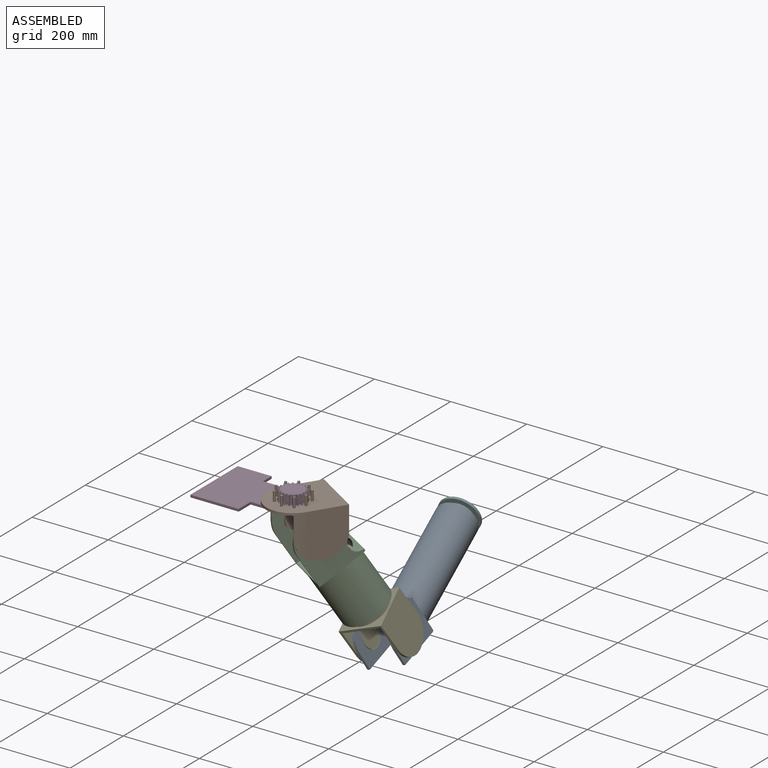
[diagram: assembled view]
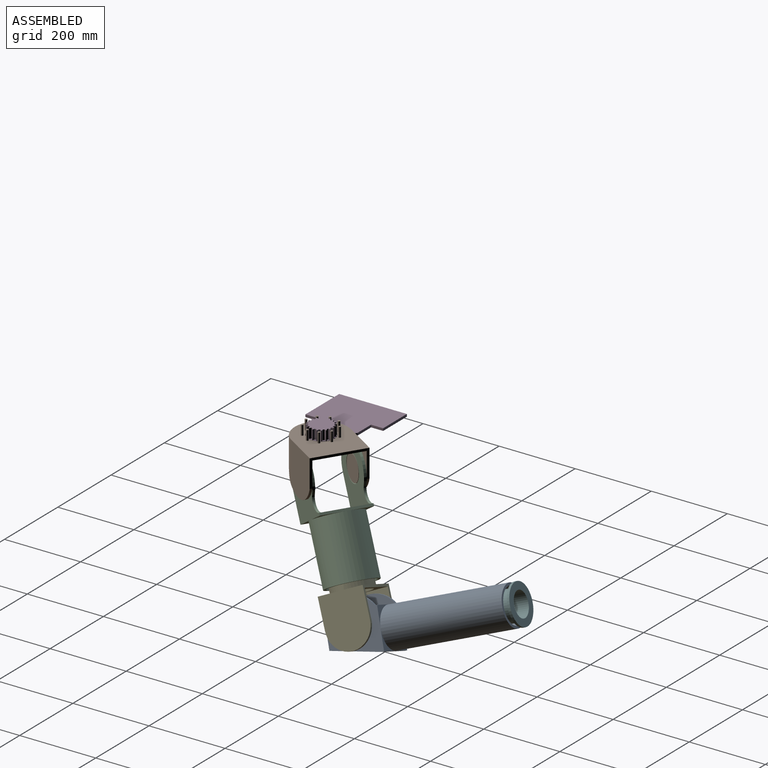
[diagram: assembled view, second angle]
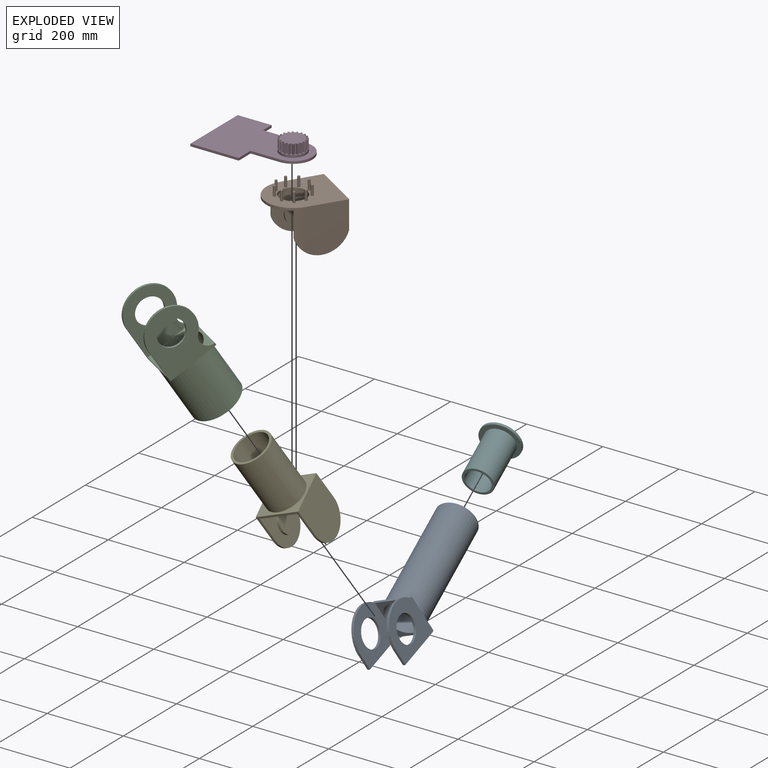
[diagram: exploded view]
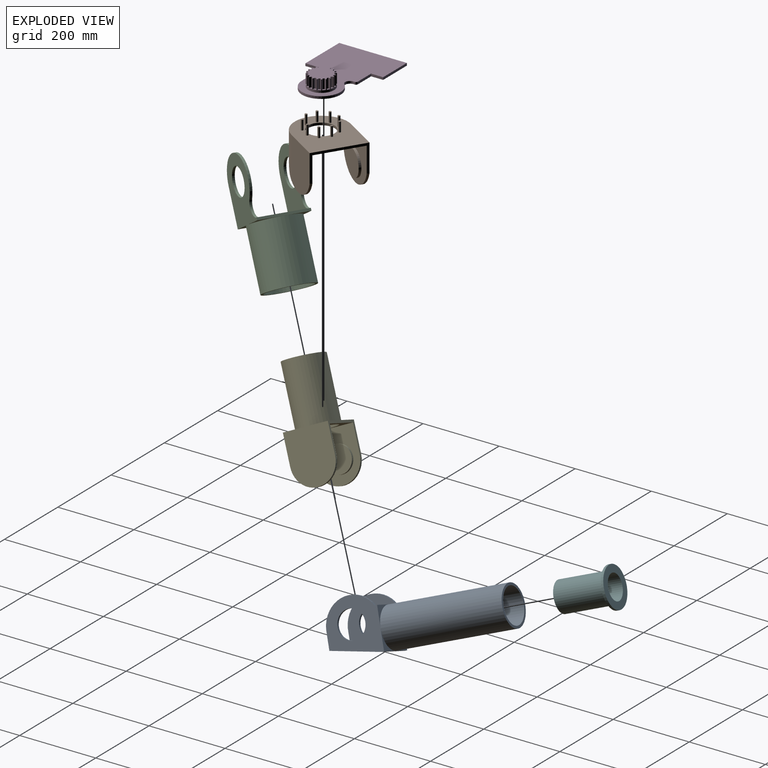
[diagram: exploded view, second angle]
ASSEMBLY  parts=6 mates=5
PART A: 23 faces, bbox 101.6x438.2x133.4 mm
  f0: plane 47.46x6.35mm, normal (0,-1,0), area 301.3mm2, adj f3,f15,f20,f22
  f1: plane 47.46x6.35mm, normal (0,-1,0), area 301.3mm2, adj f2,f4,f17,f19
  f2: plane 133.35x133.35mm, normal (1,0,0), area 10772.3mm2, adj f1,f10,f11,f14,f16,f17,f18,f19
  f3: plane 133.35x127mm, normal (1,0,0), area 10127.1mm2, adj f0,f5,f6,f20,f21,f22
  f4: plane 133.35x127mm, normal (-1,0,0), area 10127.1mm2, adj f1,f5,f6,f17,f18,f19
  f5: plane 88.9x50.8mm, normal (0,-1,0), area 1412.5mm2, adj f3,f4,f7,f16
  f6: plane 88.9x50.8mm, normal (0,-1,0), area 1412.5mm2, adj f3,f4,f7,f14
  f7: cylinder r=44.45mm len=311.15mm, axis (0,1,0), area 86900.3mm2, adj f5,f6,f9
  f8: cylinder r=50.8mm len=304.8mm, axis (0,1,0), area 97287.8mm2, adj f9,f10,f11,f12,f13
  f9: plane 101.6x101.6mm, normal (0,1,0), area 1900.2mm2, adj f7,f8
  f10: plane 50.8x50.8mm, normal (0,1,0), area 553.8mm2, adj f2,f8,f16
  f11: plane 50.8x50.8mm, normal (0,1,0), area 553.8mm2, adj f2,f8,f14
  f12: plane 50.8x50.8mm, normal (0,1,0), area 553.8mm2, adj f8,f14,f15
  f13: plane 50.8x50.8mm, normal (0,1,0), area 553.8mm2, adj f8,f15,f16
  f14: plane 101.6x6.35mm, normal (0,0,1), area 645.2mm2, adj f2,f6,f11,f12,f15,f17,f20
  f15: plane 133.35x133.35mm, normal (-1,0,0), area 10772.3mm2, adj f0,f12,f13,f14,f16,f20,f21,f22
  f16: plane 101.6x6.35mm, normal (0,0,-1), area 645.2mm2, adj f2,f5,f10,f13,f15,f19,f22
  f17: cylinder r=69.09mm len=127mm, axis (-1,0,0), area 1092.3mm2, adj f1,f2,f4,f14
  f18: cylinder r=34.92mm len=69.85mm, axis (-1,0,0), area 1393.4mm2, adj f2,f4
  f19: plane 127x22.39mm, normal (0,-0.17,-0.98), area 818.9mm2, adj f1,f2,f4,f16
  f20: cylinder r=69.09mm len=127mm, axis (-1,0,0), area 1092.3mm2, adj f0,f3,f14,f15
  f21: cylinder r=34.92mm len=69.85mm, axis (-1,0,0), area 1393.4mm2, adj f3,f15
  f22: plane 127x22.39mm, normal (0,-0.17,-0.98), area 818.9mm2, adj f0,f3,f15,f16
PART B: 35 faces, bbox 171.5x139.7x146.1 mm
  f0: plane 66.68x1.57mm, normal (-1,0,0), area 104.6mm2, adj f3,f5,f7,f12
  f1: plane 66.68x1.57mm, normal (-1,0,0), area 104.6mm2, adj f4,f5,f7,f11
  f2: plane 120.65x101.6mm, normal (0,1,0), area 11314mm2, adj f5,f6,f10,f12
  f3: plane 127x114.3mm, normal (0,-1,0), area 9364.3mm2, adj f0,f6,f7,f12,f15
  f4: plane 127x114.3mm, normal (0,1,0), area 9364.3mm2, adj f1,f6,f7,f11,f13
  f5: cylinder r=69.85mm len=139.7mm, axis (0,0,-1), area 5996.2mm2, adj f0,f1,f2,f7,f8,f10,f11,f12
  f6: plane 139.7x73.03mm, normal (1,0,0), area 1733.9mm2, adj f2,f3,f4,f7,f8,f10,f11,f12
  f7: plane 171.45x130.14mm, normal (0,0,-1), area 16492.4mm2, adj f0,f1,f3,f4,f5,f6,f9
  f8: plane 120.65x101.6mm, normal (0,-1,0), area 11314mm2, adj f5,f6,f10,f11
  f9: cylinder r=34.92mm len=69.85mm, axis (0,0,-1), area 1393.4mm2, adj f7,f10
  f10: plane 171.45x139.7mm, normal (0,0,1), area 17740.5mm2, adj f2,f5,f6,f8,f9,f17,f19,f21
  f11: cylinder r=66.15mm len=127mm, axis (0,-1,0), area 992.5mm2, adj f1,f4,f5,f6,f8
  f12: cylinder r=66.15mm len=127mm, axis (0,-1,0), area 992.5mm2, adj f0,f2,f3,f5,f6
  f13: cylinder r=33.65mm len=67.31mm, axis (0,-1,0), area 1342.8mm2, adj f4,f14
  f14: plane 67.31x67.31mm, normal (0,1,0), area 3558.4mm2, adj f13
  f15: cylinder r=33.65mm len=67.31mm, axis (0,1,0), area 1342.8mm2, adj f3,f16
  f16: plane 67.31x67.31mm, normal (0,-1,0), area 3558.4mm2, adj f15
  f17: cylinder r=3.17mm len=25.4mm, axis (0,0,-1), area 506.7mm2, adj f10,f18
  f18: plane 6.35x6.35mm, normal (0,0,1), area 31.7mm2, adj f17
  f19: cylinder r=3.17mm len=25.4mm, axis (0,0,-1), area 506.7mm2, adj f10,f20
  f20: plane 6.35x6.35mm, normal (0,0,1), area 31.7mm2, adj f19
  f21: cylinder r=3.17mm len=25.4mm, axis (0,0,-1), area 506.7mm2, adj f10,f22
  f22: plane 6.35x6.35mm, normal (0,0,1), area 31.7mm2, adj f21
  f23: cylinder r=3.17mm len=25.4mm, axis (0,0,-1), area 506.7mm2, adj f10,f24
  f24: plane 6.35x6.35mm, normal (0,0,1), area 31.7mm2, adj f23
  f25: cylinder r=3.17mm len=25.4mm, axis (0,0,-1), area 506.7mm2, adj f10,f26
  f26: plane 6.35x6.35mm, normal (0,0,1), area 31.7mm2, adj f25
  f27: cylinder r=3.17mm len=25.4mm, axis (0,0,-1), area 506.7mm2, adj f10,f28
  f28: plane 6.35x6.35mm, normal (0,0,1), area 31.7mm2, adj f27
  f29: cylinder r=3.17mm len=25.4mm, axis (0,0,-1), area 506.7mm2, adj f10,f30
  f30: plane 6.35x6.35mm, normal (0,0,1), area 31.7mm2, adj f29
  f31: cylinder r=3.17mm len=25.4mm, axis (0,0,-1), area 506.7mm2, adj f10,f32
  f32: plane 6.35x6.35mm, normal (0,0,1), area 31.7mm2, adj f31
  f33: cylinder r=3.17mm len=25.4mm, axis (0,0,-1), area 506.7mm2, adj f10,f34
  f34: plane 6.35x6.35mm, normal (0,0,1), area 31.7mm2, adj f33
PART C: 21 faces, bbox 127x127x311.2 mm
  f0: plane 158.75x127mm, normal (0,-1,0), area 13383.7mm2, adj f11,f12,f13,f14,f18,f19,f20
  f1: plane 152.4x127mm, normal (0,1,0), area 12577.2mm2, adj f4,f5,f14,f18,f19,f20
  f2: plane 152.4x127mm, normal (0,-1,0), area 12577.2mm2, adj f4,f5,f14,f15,f16,f17
  f3: plane 158.75x127mm, normal (0,1,0), area 13383.7mm2, adj f9,f10,f13,f14,f15,f16,f17
  f4: plane 114.3x63.5mm, normal (0,0,1), area 2127.6mm2, adj f1,f2,f6,f13
  f5: plane 114.3x63.5mm, normal (0,0,1), area 2127.6mm2, adj f1,f2,f6,f14
  f6: cylinder r=57.15mm len=158.75mm, axis (0,0,-1), area 57004.6mm2, adj f4,f5,f8
  f7: cylinder r=63.5mm len=152.4mm, axis (0,0,-1), area 60804.9mm2, adj f8,f9,f10,f11,f12
  f8: plane 127x127mm, normal (0,0,-1), area 2406.9mm2, adj f6,f7
  f9: plane 63.5x63.5mm, normal (0,0,-1), area 865.3mm2, adj f3,f7,f13
  f10: plane 63.5x63.5mm, normal (0,0,-1), area 865.3mm2, adj f3,f7,f14
  f11: plane 63.5x63.5mm, normal (0,0,-1), area 865.3mm2, adj f0,f7,f14
  f12: plane 63.5x63.5mm, normal (0,0,-1), area 865.3mm2, adj f0,f7,f13
  f13: plane 127x6.35mm, normal (1,0,0), area 806.4mm2, adj f0,f3,f4,f9,f12,f15,f18
  f14: plane 127x95.25mm, normal (-1,0,0), area 1935.5mm2, adj f0,f1,f2,f3,f5,f10,f11,f16
  f15: cylinder r=25.93mm len=44.19mm, axis (0,1,0), area 387.3mm2, adj f2,f3,f13,f16
  f16: cylinder r=63.5mm len=127mm, axis (0,1,0), area 1581.8mm2, adj f2,f3,f14,f15
  f17: cylinder r=34.92mm len=69.85mm, axis (0,1,0), area 1393.4mm2, adj f2,f3
  f18: cylinder r=25.93mm len=44.19mm, axis (0,1,0), area 387.3mm2, adj f0,f1,f13,f19
  f19: cylinder r=63.5mm len=127mm, axis (0,1,0), area 1581.8mm2, adj f0,f1,f14,f18
  f20: cylinder r=34.92mm len=69.85mm, axis (0,1,0), area 1393.4mm2, adj f0,f1
PART D: 154 faces, bbox 254x177.8x38.1 mm
  f0: plane 7.97x7.97mm, normal (0,0,1), area 30.9mm2, adj f19,f147,f148,f149
  f1: plane 7.97x7.23mm, normal (0,0,1), area 30.9mm2, adj f19,f143,f144,f145
  f2: plane 8.84x5.79mm, normal (0,0,1), area 30.9mm2, adj f19,f139,f140,f141
  f3: plane 8.84x5.79mm, normal (0,0,1), area 30.9mm2, adj f19,f135,f136,f137
  f4: plane 7.97x7.23mm, normal (0,0,1), area 30.9mm2, adj f19,f131,f132,f133
  f5: plane 7.97x7.97mm, normal (0,0,1), area 30.9mm2, adj f19,f127,f128,f129
  f6: plane 7.97x7.23mm, normal (0,0,1), area 30.9mm2, adj f19,f123,f124,f125
  f7: plane 8.84x5.79mm, normal (0,0,1), area 30.9mm2, adj f19,f119,f120,f121
  f8: plane 8.84x5.79mm, normal (0,0,1), area 30.9mm2, adj f19,f115,f116,f117
  f9: plane 7.97x7.23mm, normal (0,0,1), area 30.9mm2, adj f19,f111,f112,f113
  f10: plane 7.97x7.97mm, normal (0,0,1), area 30.9mm2, adj f19,f107,f108,f109
  f11: plane 7.97x7.23mm, normal (0,0,1), area 30.9mm2, adj f19,f103,f104,f105
  f12: plane 8.84x5.79mm, normal (0,0,1), area 30.9mm2, adj f19,f99,f100,f101
  f13: plane 8.84x5.79mm, normal (0,0,1), area 30.9mm2, adj f19,f95,f96,f97
  f14: plane 7.97x7.23mm, normal (0,0,1), area 30.9mm2, adj f19,f91,f92,f93
  f15: plane 7.97x7.97mm, normal (0,0,1), area 30.9mm2, adj f19,f87,f88,f89
  f16: plane 7.97x7.23mm, normal (0,0,1), area 30.9mm2, adj f19,f83,f84,f85
  f17: plane 8.84x5.79mm, normal (0,0,1), area 30.9mm2, adj f19,f79,f80,f81
  f18: plane 8.84x5.79mm, normal (0,0,1), area 30.9mm2, adj f19,f75,f76,f77
  f19: cylinder r=33.65mm len=67.31mm, axis (0,0,-1), area 1342.8mm2, adj f0,f1,f2,f3,f4,f5,f6,f7
  f20: plane 7.97x7.23mm, normal (0,0,1), area 30.9mm2, adj f19,f72,f73,f151
  f21: cylinder r=50.8mm len=101.6mm, axis (0,0,1), area 1284.7mm2, adj f22,f30,f31,f32
  f22: plane 76.2x6.35mm, normal (0,-1,0), area 483.9mm2, adj f21,f23,f31,f32
  f23: plane 44.45x6.35mm, normal (1,0,0), area 282.3mm2, adj f22,f24,f31,f32
  f24: plane 127x6.35mm, normal (0,-1,0), area 806.5mm2, adj f23,f25,f31,f32
  f25: plane 177.8x6.35mm, normal (-1,0,0), area 1129mm2, adj f24,f26,f31,f32
  f26: plane 88.9x6.35mm, normal (0,1,0), area 564.5mm2, adj f25,f27,f31,f32
  f27: plane 31.75x6.35mm, normal (1,0,0), area 201.6mm2, adj f26,f28,f31,f32
  f28: plane 49.52x6.35mm, normal (0,1,0), area 314.4mm2, adj f27,f29,f31,f32
  f29: cylinder r=5.08mm len=6.35mm, axis (0,0,1), area 56.9mm2, adj f28,f30,f31,f32
  f30: cylinder r=12.7mm len=22.17mm, axis (0,0,1), area 210mm2, adj f21,f29,f31,f32
  f31: plane 254x177.8mm, normal (0,0,-1), area 32543.8mm2, adj f21,f22,f23,f24,f25,f26,f27,f28
  f32: plane 254x177.8mm, normal (0,0,1), area 28985.4mm2, adj f19,f21,f22,f23,f24,f25,f26,f27
  f33: plane 0.76x0.25mm, normal (0,0,-1), area 0mm2, adj f19,f114,f115
  f34: plane 0.76x0.26mm, normal (0,0,-1), area 0mm2, adj f19,f113,f114
  f35: plane 0.65x0.47mm, normal (0,0,-1), area 0mm2, adj f19,f110,f111
  f36: plane 0.64x0.48mm, normal (0,0,-1), area 0mm2, adj f19,f109,f110
  f37: plane 0.64x0.48mm, normal (0,0,-1), area 0mm2, adj f19,f106,f107
  f38: plane 0.65x0.47mm, normal (0,0,-1), area 0mm2, adj f19,f105,f106
  f39: plane 0.76x0.26mm, normal (0,0,-1), area 0mm2, adj f19,f102,f103
  f40: plane 0.76x0.25mm, normal (0,0,-1), area 0mm2, adj f19,f101,f102
  f41: plane 0.8x0.01mm, normal (0,0,-1), area 0mm2, adj f19,f98,f99
  f42: plane 0.8x0.01mm, normal (0,0,-1), area 0mm2, adj f19,f97,f98
  f43: plane 0.76x0.25mm, normal (0,0,-1), area 0mm2, adj f19,f94,f95
  f44: plane 0.76x0.26mm, normal (0,0,-1), area 0mm2, adj f19,f93,f94
  f45: plane 0.65x0.47mm, normal (0,0,-1), area 0mm2, adj f19,f90,f91
  f46: plane 0.64x0.48mm, normal (0,0,-1), area 0mm2, adj f19,f89,f90
  f47: plane 0.64x0.48mm, normal (0,0,-1), area 0mm2, adj f19,f86,f87
  f48: plane 0.65x0.47mm, normal (0,0,-1), area 0mm2, adj f19,f85,f86
  f49: plane 0.76x0.26mm, normal (0,0,-1), area 0mm2, adj f19,f82,f83
  f50: plane 0.76x0.25mm, normal (0,0,-1), area 0mm2, adj f19,f81,f82
  f51: plane 0.8x0.01mm, normal (0,0,-1), area 0mm2, adj f19,f78,f79
  f52: plane 0.8x0.01mm, normal (0,0,-1), area 0mm2, adj f19,f77,f78
  f53: plane 0.76x0.25mm, normal (0,0,-1), area 0mm2, adj f19,f74,f75
  f54: plane 0.76x0.26mm, normal (0,0,-1), area 0mm2, adj f19,f73,f74
  f55: plane 0.65x0.47mm, normal (0,0,-1), area 0mm2, adj f19,f150,f151
  f56: plane 0.64x0.48mm, normal (0,0,-1), area 0mm2, adj f19,f149,f150
  f57: plane 0.64x0.48mm, normal (0,0,-1), area 0mm2, adj f19,f146,f147
  f58: plane 0.65x0.47mm, normal (0,0,-1), area 0mm2, adj f19,f145,f146
  f59: plane 0.76x0.26mm, normal (0,0,-1), area 0mm2, adj f19,f142,f143
  f60: plane 0.76x0.25mm, normal (0,0,-1), area 0mm2, adj f19,f141,f142
  f61: plane 0.8x0.01mm, normal (0,0,-1), area 0mm2, adj f19,f138,f139
  f62: plane 0.8x0.01mm, normal (0,0,-1), area 0mm2, adj f19,f137,f138
  f63: plane 0.76x0.25mm, normal (0,0,-1), area 0mm2, adj f19,f134,f135
  f64: plane 0.76x0.26mm, normal (0,0,-1), area 0mm2, adj f19,f133,f134
  f65: plane 0.65x0.47mm, normal (0,0,-1), area 0mm2, adj f19,f130,f131
  f66: plane 0.64x0.48mm, normal (0,0,-1), area 0mm2, adj f19,f129,f130
  f67: plane 0.64x0.48mm, normal (0,0,-1), area 0mm2, adj f19,f126,f127
  f68: plane 0.65x0.47mm, normal (0,0,-1), area 0mm2, adj f19,f125,f126
  f69: plane 0.76x0.26mm, normal (0,0,-1), area 0mm2, adj f19,f122,f123
  f70: plane 0.76x0.25mm, normal (0,0,-1), area 0mm2, adj f19,f121,f122
  f71: plane 0.8x0.01mm, normal (0,0,-1), area 0mm2, adj f19,f117,f118
  f72: cylinder r=28.57mm len=25.4mm, axis (0,0,-1), area 98.8mm2, adj f20,f73,f151,f152
  f73: cylinder r=15.24mm len=25.4mm, axis (0,0,-1), area 139.9mm2, adj f20,f54,f72,f74,f152
  f74: plane 25.4x1.51mm, normal (0.95,-0.31,0), area 40.3mm2, adj f53,f54,f73,f75,f152
  f75: cylinder r=15.24mm len=25.4mm, axis (0,0,-1), area 139.9mm2, adj f18,f53,f74,f76,f152
  f76: cylinder r=28.57mm len=25.4mm, axis (0,0,-1), area 98.8mm2, adj f18,f75,f77,f152
  f77: cylinder r=15.24mm len=25.4mm, axis (0,0,-1), area 139.9mm2, adj f18,f52,f76,f78,f152
  f78: plane 25.4x1.59mm, normal (1,0,0), area 40.3mm2, adj f51,f52,f77,f79,f152
  f79: cylinder r=15.24mm len=25.4mm, axis (0,0,-1), area 139.9mm2, adj f17,f51,f78,f80,f152
  f80: cylinder r=28.57mm len=25.4mm, axis (0,0,-1), area 98.8mm2, adj f17,f79,f81,f152
  f81: cylinder r=15.24mm len=25.4mm, axis (0,0,-1), area 139.9mm2, adj f17,f50,f80,f82,f152
  f82: plane 25.4x1.51mm, normal (0.95,0.31,0), area 40.3mm2, adj f49,f50,f81,f83,f152
  f83: cylinder r=15.24mm len=25.4mm, axis (0,0,-1), area 139.9mm2, adj f16,f49,f82,f84,f152
  f84: cylinder r=28.57mm len=25.4mm, axis (0,0,-1), area 98.8mm2, adj f16,f83,f85,f152
  f85: cylinder r=15.24mm len=25.4mm, axis (0,0,-1), area 139.9mm2, adj f16,f48,f84,f86,f152
  f86: plane 25.4x1.28mm, normal (0.81,0.59,0), area 40.3mm2, adj f47,f48,f85,f87,f152
  f87: cylinder r=15.24mm len=25.4mm, axis (0,0,-1), area 139.9mm2, adj f15,f47,f86,f88,f152
  f88: cylinder r=28.57mm len=25.4mm, axis (0,0,-1), area 98.8mm2, adj f15,f87,f89,f152
  f89: cylinder r=15.24mm len=25.4mm, axis (0,0,-1), area 139.9mm2, adj f15,f46,f88,f90,f152
  f90: plane 25.4x1.28mm, normal (0.59,0.81,0), area 40.3mm2, adj f45,f46,f89,f91,f152
  f91: cylinder r=15.24mm len=25.4mm, axis (0,0,-1), area 139.9mm2, adj f14,f45,f90,f92,f152
  f92: cylinder r=28.57mm len=25.4mm, axis (0,0,-1), area 98.8mm2, adj f14,f91,f93,f152
  f93: cylinder r=15.24mm len=25.4mm, axis (0,0,-1), area 139.9mm2, adj f14,f44,f92,f94,f152
  f94: plane 25.4x1.51mm, normal (0.31,0.95,0), area 40.3mm2, adj f43,f44,f93,f95,f152
  f95: cylinder r=15.24mm len=25.4mm, axis (0,0,-1), area 139.9mm2, adj f13,f43,f94,f96,f152
  f96: cylinder r=28.57mm len=25.4mm, axis (0,0,-1), area 98.8mm2, adj f13,f95,f97,f152
  f97: cylinder r=15.24mm len=25.4mm, axis (0,0,-1), area 139.9mm2, adj f13,f42,f96,f98,f152
  f98: plane 25.4x1.59mm, normal (0,1,0), area 40.3mm2, adj f41,f42,f97,f99,f152
  f99: cylinder r=15.24mm len=25.4mm, axis (0,0,-1), area 139.9mm2, adj f12,f41,f98,f100,f152
  f100: cylinder r=28.57mm len=25.4mm, axis (0,0,-1), area 98.8mm2, adj f12,f99,f101,f152
  f101: cylinder r=15.24mm len=25.4mm, axis (0,0,-1), area 139.9mm2, adj f12,f40,f100,f102,f152
  f102: plane 25.4x1.51mm, normal (-0.31,0.95,0), area 40.3mm2, adj f39,f40,f101,f103,f152
  f103: cylinder r=15.24mm len=25.4mm, axis (0,0,-1), area 139.9mm2, adj f11,f39,f102,f104,f152
  f104: cylinder r=28.57mm len=25.4mm, axis (0,0,-1), area 98.8mm2, adj f11,f103,f105,f152
  f105: cylinder r=15.24mm len=25.4mm, axis (0,0,-1), area 139.9mm2, adj f11,f38,f104,f106,f152
  f106: plane 25.4x1.28mm, normal (-0.59,0.81,0), area 40.3mm2, adj f37,f38,f105,f107,f152
  f107: cylinder r=15.24mm len=25.4mm, axis (0,0,-1), area 139.9mm2, adj f10,f37,f106,f108,f152
  f108: cylinder r=28.57mm len=25.4mm, axis (0,0,-1), area 98.8mm2, adj f10,f107,f109,f152
  f109: cylinder r=15.24mm len=25.4mm, axis (0,0,-1), area 139.9mm2, adj f10,f36,f108,f110,f152
  f110: plane 25.4x1.28mm, normal (-0.81,0.59,0), area 40.3mm2, adj f35,f36,f109,f111,f152
  f111: cylinder r=15.24mm len=25.4mm, axis (0,0,-1), area 139.9mm2, adj f9,f35,f110,f112,f152
  f112: cylinder r=28.57mm len=25.4mm, axis (0,0,-1), area 98.8mm2, adj f9,f111,f113,f152
  f113: cylinder r=15.24mm len=25.4mm, axis (0,0,-1), area 139.9mm2, adj f9,f34,f112,f114,f152
  f114: plane 25.4x1.51mm, normal (-0.95,0.31,0), area 40.3mm2, adj f33,f34,f113,f115,f152
  f115: cylinder r=15.24mm len=25.4mm, axis (0,0,-1), area 139.9mm2, adj f8,f33,f114,f116,f152
  f116: cylinder r=28.57mm len=25.4mm, axis (0,0,-1), area 98.8mm2, adj f8,f115,f117,f152
  f117: cylinder r=15.24mm len=25.4mm, axis (0,0,-1), area 139.9mm2, adj f8,f71,f116,f118,f152
  f118: plane 25.4x1.59mm, normal (-1,0,0), area 40.3mm2, adj f71,f117,f119,f152,f153
  f119: cylinder r=15.24mm len=25.4mm, axis (0,0,-1), area 139.9mm2, adj f7,f118,f120,f152,f153
  f120: cylinder r=28.57mm len=25.4mm, axis (0,0,-1), area 98.8mm2, adj f7,f119,f121,f152
  f121: cylinder r=15.24mm len=25.4mm, axis (0,0,-1), area 139.9mm2, adj f7,f70,f120,f122,f152
  f122: plane 25.4x1.51mm, normal (-0.95,-0.31,0), area 40.3mm2, adj f69,f70,f121,f123,f152
  f123: cylinder r=15.24mm len=25.4mm, axis (0,0,-1), area 139.9mm2, adj f6,f69,f122,f124,f152
  f124: cylinder r=28.57mm len=25.4mm, axis (0,0,-1), area 98.8mm2, adj f6,f123,f125,f152
  f125: cylinder r=15.24mm len=25.4mm, axis (0,0,-1), area 139.9mm2, adj f6,f68,f124,f126,f152
  f126: plane 25.4x1.28mm, normal (-0.81,-0.59,0), area 40.3mm2, adj f67,f68,f125,f127,f152
  f127: cylinder r=15.24mm len=25.4mm, axis (0,0,-1), area 139.9mm2, adj f5,f67,f126,f128,f152
  f128: cylinder r=28.57mm len=25.4mm, axis (0,0,-1), area 98.8mm2, adj f5,f127,f129,f152
  f129: cylinder r=15.24mm len=25.4mm, axis (0,0,-1), area 139.9mm2, adj f5,f66,f128,f130,f152
  f130: plane 25.4x1.28mm, normal (-0.59,-0.81,0), area 40.3mm2, adj f65,f66,f129,f131,f152
  f131: cylinder r=15.24mm len=25.4mm, axis (0,0,-1), area 139.9mm2, adj f4,f65,f130,f132,f152
  f132: cylinder r=28.57mm len=25.4mm, axis (0,0,-1), area 98.8mm2, adj f4,f131,f133,f152
  f133: cylinder r=15.24mm len=25.4mm, axis (0,0,-1), area 139.9mm2, adj f4,f64,f132,f134,f152
  f134: plane 25.4x1.51mm, normal (-0.31,-0.95,0), area 40.3mm2, adj f63,f64,f133,f135,f152
  f135: cylinder r=15.24mm len=25.4mm, axis (0,0,-1), area 139.9mm2, adj f3,f63,f134,f136,f152
  f136: cylinder r=28.57mm len=25.4mm, axis (0,0,-1), area 98.8mm2, adj f3,f135,f137,f152
  f137: cylinder r=15.24mm len=25.4mm, axis (0,0,-1), area 139.9mm2, adj f3,f62,f136,f138,f152
  f138: plane 25.4x1.59mm, normal (0,-1,0), area 40.3mm2, adj f61,f62,f137,f139,f152
  f139: cylinder r=15.24mm len=25.4mm, axis (0,0,-1), area 139.9mm2, adj f2,f61,f138,f140,f152
  f140: cylinder r=28.57mm len=25.4mm, axis (0,0,-1), area 98.8mm2, adj f2,f139,f141,f152
  f141: cylinder r=15.24mm len=25.4mm, axis (0,0,-1), area 139.9mm2, adj f2,f60,f140,f142,f152
  f142: plane 25.4x1.51mm, normal (0.31,-0.95,0), area 40.3mm2, adj f59,f60,f141,f143,f152
  f143: cylinder r=15.24mm len=25.4mm, axis (0,0,-1), area 139.9mm2, adj f1,f59,f142,f144,f152
  f144: cylinder r=28.57mm len=25.4mm, axis (0,0,-1), area 98.8mm2, adj f1,f143,f145,f152
  f145: cylinder r=15.24mm len=25.4mm, axis (0,0,-1), area 139.9mm2, adj f1,f58,f144,f146,f152
  f146: plane 25.4x1.28mm, normal (0.59,-0.81,0), area 40.3mm2, adj f57,f58,f145,f147,f152
  f147: cylinder r=15.24mm len=25.4mm, axis (0,0,-1), area 139.9mm2, adj f0,f57,f146,f148,f152
  f148: cylinder r=28.57mm len=25.4mm, axis (0,0,-1), area 98.8mm2, adj f0,f147,f149,f152
  f149: cylinder r=15.24mm len=25.4mm, axis (0,0,-1), area 139.9mm2, adj f0,f56,f148,f150,f152
  f150: plane 25.4x1.28mm, normal (0.81,-0.59,0), area 40.3mm2, adj f55,f56,f149,f151,f152
  f151: cylinder r=15.24mm len=25.4mm, axis (0,0,-1), area 139.9mm2, adj f20,f55,f72,f150,f152
  f152: plane 67.31x67.31mm, normal (0,0,1), area 2940.1mm2, adj f72,f73,f74,f75,f76,f77,f78,f79
  f153: plane 0.8x0.01mm, normal (0,0,-1), area 0mm2, adj f19,f118,f119
PART E: 17 faces, bbox 114.3x114.3x285.8 mm
  f0: plane 133.35x114.3mm, normal (1,0,0), area 13840.1mm2, adj f4,f5,f8,f9
  f1: plane 133.35x114.3mm, normal (-1,0,0), area 13840.1mm2, adj f4,f5,f8,f10
  f2: plane 127x114.3mm, normal (1,0,0), area 9555.9mm2, adj f4,f5,f6,f10,f11
  f3: plane 127x114.3mm, normal (-1,0,0), area 9555.9mm2, adj f4,f5,f6,f9,f13
  f4: plane 114.3x76.2mm, normal (0,-1,0), area 1612.9mm2, adj f0,f1,f2,f3,f6,f8,f9,f10
  f5: plane 114.3x76.2mm, normal (0,1,0), area 1612.9mm2, adj f0,f1,f2,f3,f6,f8,f9,f10
  f6: plane 114.3x101.6mm, normal (0,0,-1), area 5405.7mm2, adj f2,f3,f4,f5,f7
  f7: cylinder r=44.45mm len=158.75mm, axis (0,0,1), area 44336.9mm2, adj f6,f16
  f8: plane 114.3x114.3mm, normal (0,0,1), area 4957.2mm2, adj f0,f1,f4,f5,f15
  f9: cylinder r=57.15mm len=114.3mm, axis (-1,0,0), area 1140.1mm2, adj f0,f3,f4,f5
  f10: cylinder r=57.15mm len=114.3mm, axis (-1,0,0), area 1140.1mm2, adj f1,f2,f4,f5
  f11: cylinder r=33.65mm len=67.31mm, axis (-1,0,0), area 1342.8mm2, adj f2,f12
  f12: plane 67.31x67.31mm, normal (1,0,0), area 3558.4mm2, adj f11
  f13: cylinder r=33.65mm len=67.31mm, axis (1,0,0), area 1342.8mm2, adj f3,f14
  f14: plane 67.31x67.31mm, normal (-1,0,0), area 3558.4mm2, adj f13
  f15: cylinder r=50.8mm len=152.4mm, axis (0,0,-1), area 48643.9mm2, adj f8,f16
  f16: plane 101.6x101.6mm, normal (0,0,1), area 1900.2mm2, adj f7,f15
PART F: 6 faces, bbox 101.6x133.4x101.6 mm
  f0: cylinder r=50.8mm len=101.6mm, axis (0,-1,0), area 2026.8mm2, adj f2,f3
  f1: cylinder r=31.75mm len=133.35mm, axis (0,-1,0), area 26602.1mm2, adj f2,f5
  f2: plane 101.6x101.6mm, normal (0,1,0), area 4940.4mm2, adj f0,f1
  f3: plane 101.6x101.6mm, normal (0,-1,0), area 3547mm2, adj f0,f4
  f4: cylinder r=38.1mm len=127mm, axis (0,1,0), area 30402.4mm2, adj f3,f5
  f5: plane 76.2x76.2mm, normal (0,-1,0), area 1393.4mm2, adj f1,f4
PLACE A rot(axis=(0.73,-0.64,0.24),30.3deg) t=(10.81,159.68,191.66)mm
PLACE B rot(axis=(0,0,1),57.8deg) t=(-350.92,-151.63,0)mm
PLACE C rot(axis=(0.25,-0.45,0.86),65.5deg) t=(-249.76,8.96,54.89)mm
PLACE D at identity fixed
PLACE E rot(axis=(0.78,-0.57,0.24),33.2deg) t=(2.81,149.67,215)mm
PLACE F rot(axis=(0.77,-0.57,0.28),28.3deg) t=(10.81,159.68,191.66)mm
MATE revolute E.f7 <-> C.f6  axis (-0.28,-0.45,0.85) through (12.91,-312.71,264.31)mm
MATE revolute E.f11 <-> A.f18  axis (0.94,0.06,0.35) through (35.01,-206.36,58.22)mm
MATE revolute A.f8 <-> F.f0  axis (-0.18,0.92,0.35) through (13.16,148,187.25)mm
MATE revolute D.f19 <-> B.f5  axis (0,0,1) through (-38.1,-393.7,428.63)mm
MATE revolute B.f13 <-> C.f16  axis (0.85,-0.53,0) through (-66.15,-331,355.6)mm
